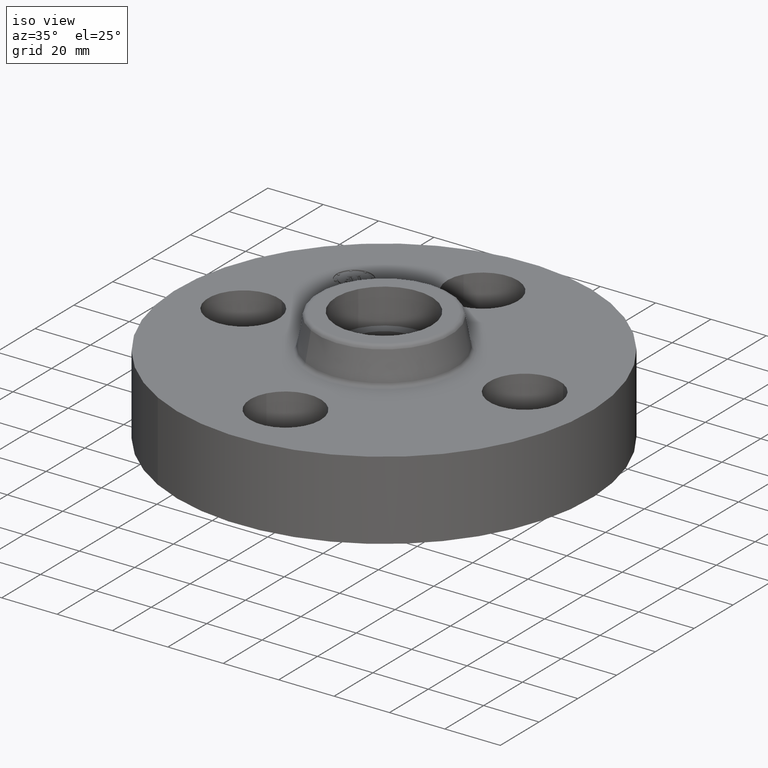
[diagram: clean part render]
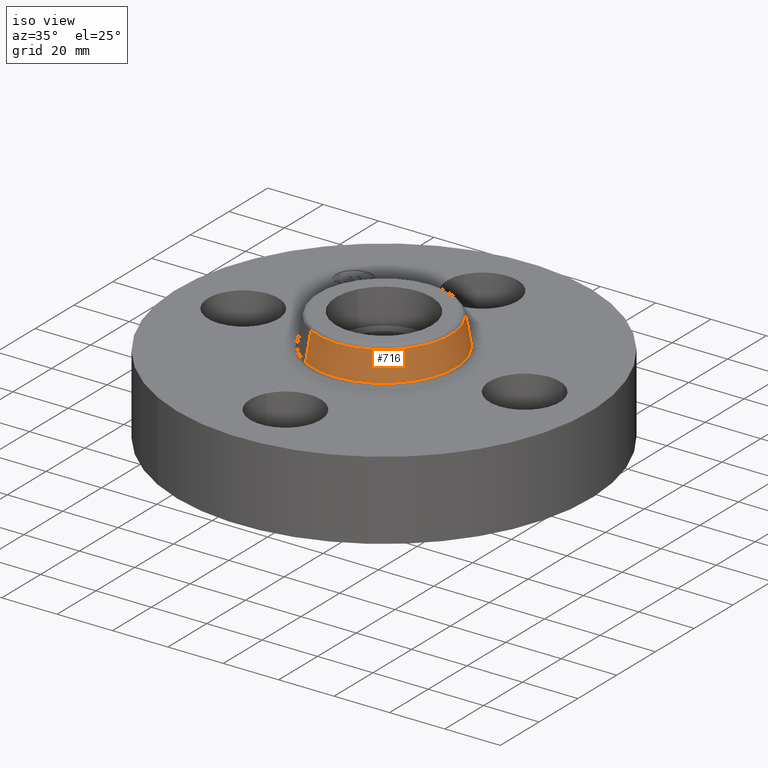
[diagram: same view with one face highlighted and labeled with its STEP entity id]
A machine part, iso view. The second image highlights one B-rep face of the part: STEP entity #716.
In plain terms, the highlighted conical surface has half-angle 10 deg.
Its self-contained STEP definition (entity closure, byte-faithful):
#609=AXIS2_PLACEMENT_3D('Circle Axis2P3D',#607,#608,$) ;
#689=AXIS2_PLACEMENT_3D('Cone Axis2P3D',#686,#687,#688) ;
#700=AXIS2_PLACEMENT_3D('Circle Axis2P3D',#698,#699,$) ;
#604=CARTESIAN_POINT('Vertex',(0.489616933077,0.89623778434,1.16958110934)) ;
#607=CARTESIAN_POINT('Axis2P3D Location',(0.,0.,1.16958110934)) ;
#611=CARTESIAN_POINT('Vertex',(-0.489616933077,-0.89623778434,1.16958110934)) ;
#686=CARTESIAN_POINT('Axis2P3D Location',(0.,0.,1.57041889067)) ;
#691=CARTESIAN_POINT('Line Origine',(0.47267439034,0.865224667885,1.37000000001)) ;
#695=CARTESIAN_POINT('Vertex',(0.455731847603,0.834211551431,1.57041889067)) ;
#698=CARTESIAN_POINT('Axis2P3D Location',(0.,0.,1.57041889067)) ;
#702=CARTESIAN_POINT('Vertex',(-0.455731847603,-0.834211551431,1.57041889067)) ;
#705=CARTESIAN_POINT('Line Origine',(-0.47267439034,-0.865224667885,1.37000000001)) ;
#608=DIRECTION('Axis2P3D Direction',(0.,0.,-0.0393700787402)) ;
#687=DIRECTION('Axis2P3D Direction',(0.,0.,-0.0393700787402)) ;
#688=DIRECTION('Axis2P3D XDirection',(-0.0188750212049,-0.0345504945626,0.)) ;
#692=DIRECTION('Vector Direction',(0.00327761303565,0.00599963041829,-0.03877195878)) ;
#699=DIRECTION('Axis2P3D Direction',(0.,0.,-0.0393700787402)) ;
#706=DIRECTION('Vector Direction',(-0.00327761303565,-0.00599963041829,-0.03877195878)) ;
#693=VECTOR('Line Direction',#692,0.0393700787402) ;
#707=VECTOR('Line Direction',#706,0.0393700787402) ;
#711=ORIENTED_EDGE('',*,*,#613,.F.) ;
#712=ORIENTED_EDGE('',*,*,#697,.T.) ;
#713=ORIENTED_EDGE('',*,*,#704,.T.) ;
#714=ORIENTED_EDGE('',*,*,#709,.F.) ;
#716=ADVANCED_FACE('PartBody',(#715),#690,.T.) ;
#610=CIRCLE('generated circle',#609,1.02125751269) ;
#701=CIRCLE('generated circle',#700,0.95057899696) ;
#690=CONICAL_SURFACE('Cone',#689,0.95057899696,0.174532925199) ;
#613=EDGE_CURVE('',#605,#612,#610,.T.) ;
#697=EDGE_CURVE('',#605,#696,#694,.F.) ;
#704=EDGE_CURVE('',#696,#703,#701,.T.) ;
#709=EDGE_CURVE('',#612,#703,#708,.F.) ;
#710=EDGE_LOOP('',(#711,#712,#713,#714)) ;
#715=FACE_OUTER_BOUND('',#710,.T.) ;
#694=LINE('Line',#691,#693) ;
#708=LINE('Line',#705,#707) ;
#605=VERTEX_POINT('',#604) ;
#612=VERTEX_POINT('',#611) ;
#696=VERTEX_POINT('',#695) ;
#703=VERTEX_POINT('',#702) ;